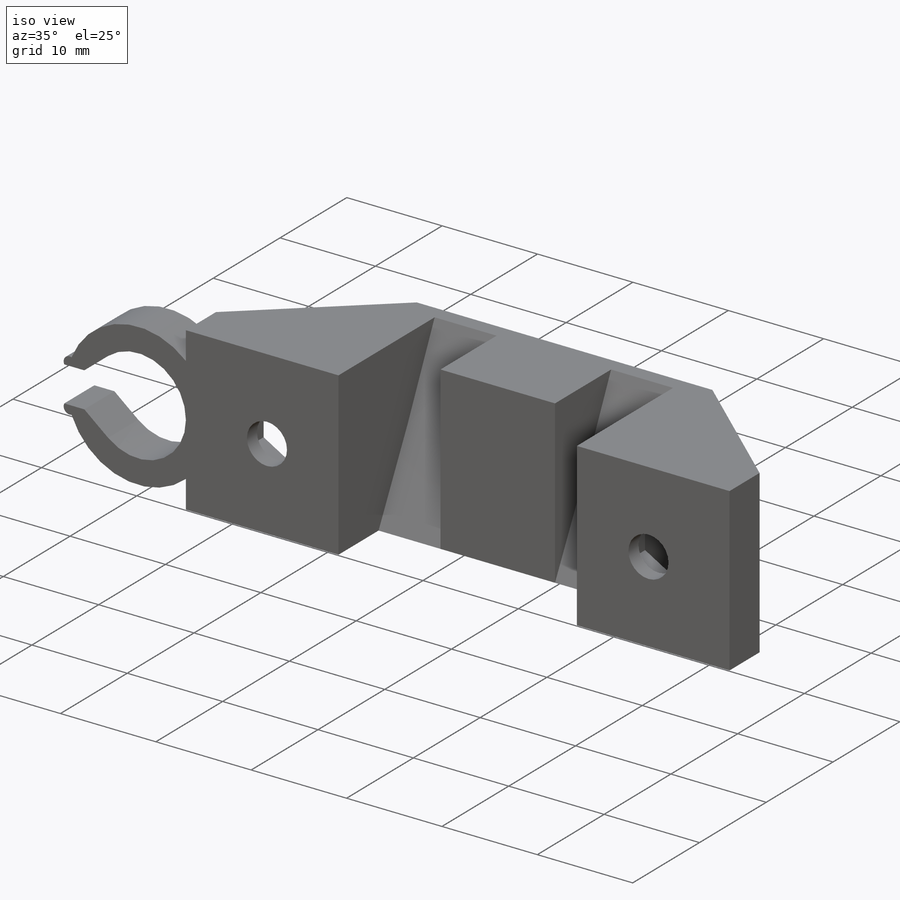
[diagram: iso view]
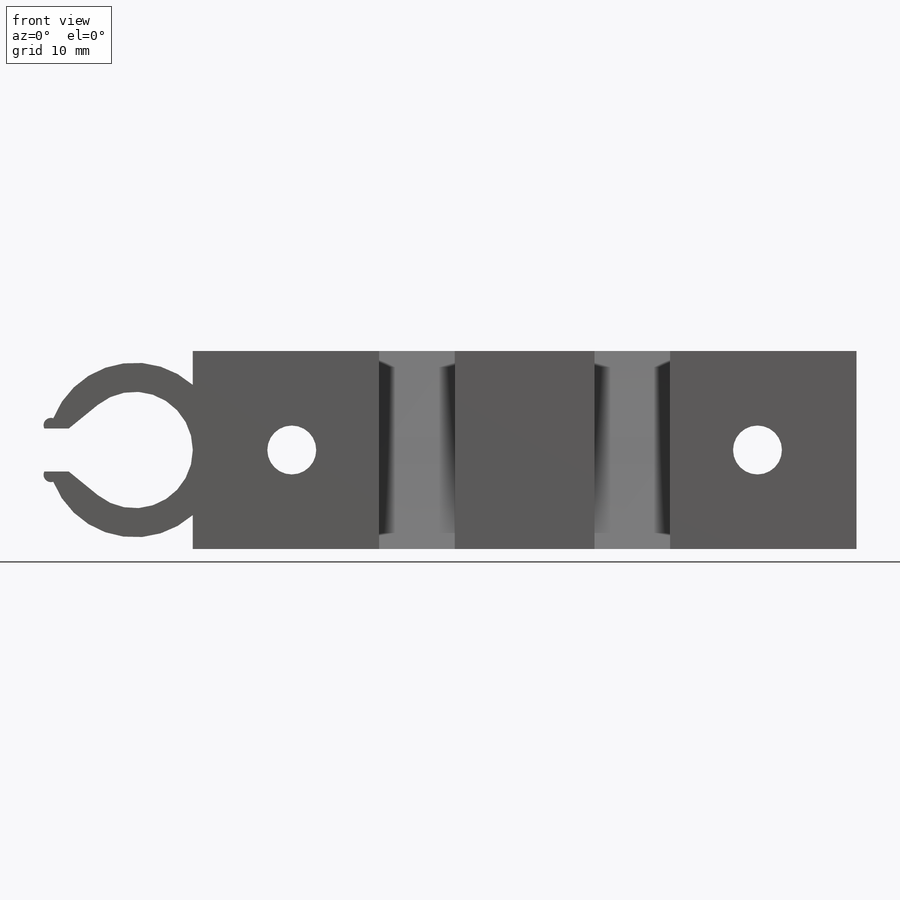
[diagram: front view]
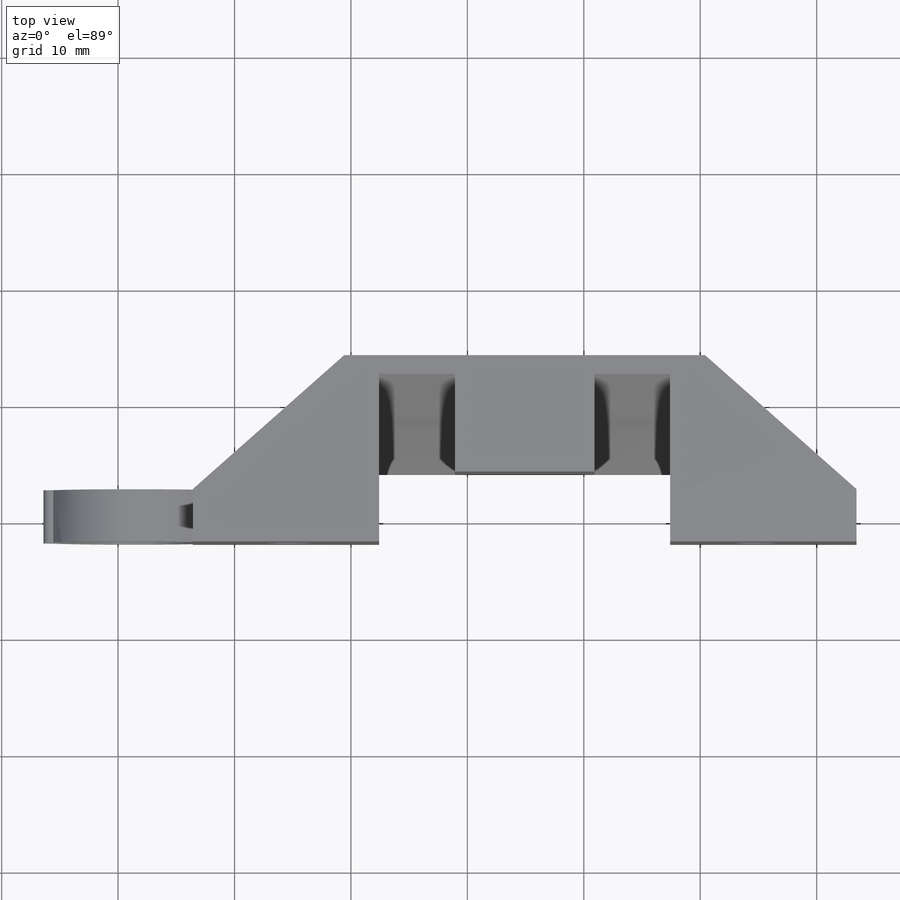
[diagram: top view]
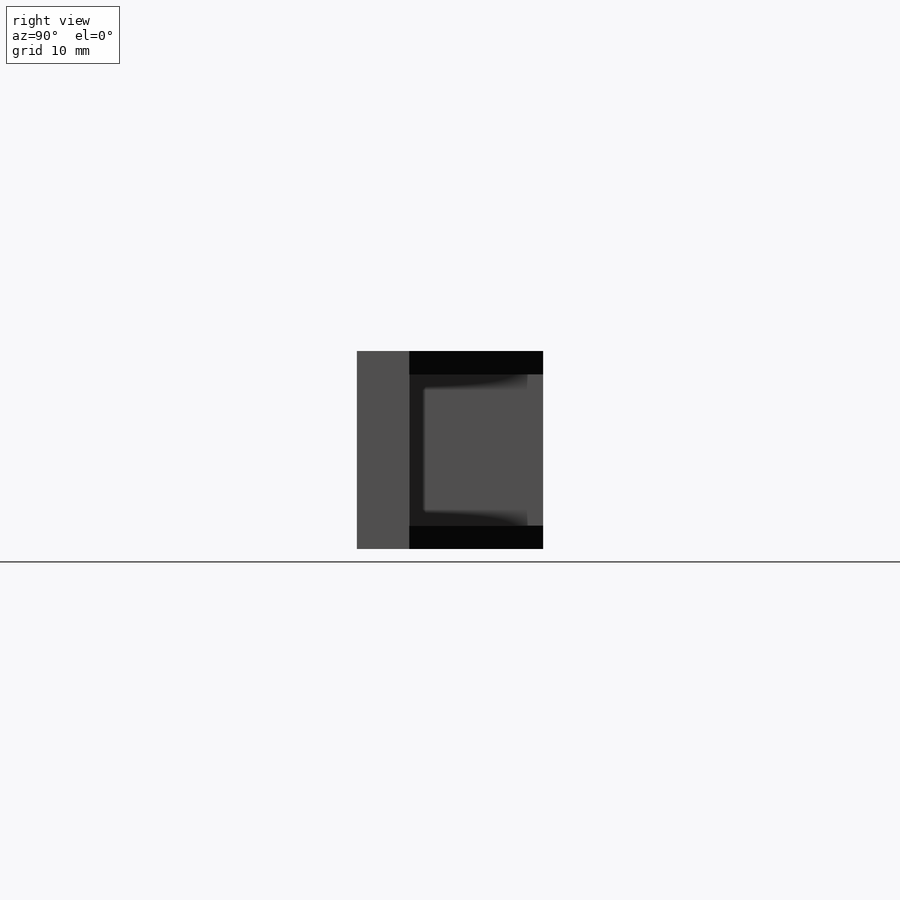
[diagram: right view]
SOLIDWORKS PART (.sldprt)
format: sldprt  version: not decoded by parser v0  size: 333,824 bytes
history: native  units: mm
features: sketch x8, extrude x4, cut_extrude x4, material x1 (+11 scaffold rows collapsed)
feature tree (28):
  scaffold x11  (default folders/planes/origin — collapsed)
  material  "Material <not specified>"
  sketch  "Sketch1"  dims[D1=10.0mm D2=25.0mm D3=31.0mm D4=3.0mm D5=11.5mm]
  extrude  "Boss-Extrude1"  Depth=17mm
  sketch  "Sketch2"
  extrude  "Boss-Extrude2"  Depth=2mm
  sketch  "Sketch3"
  extrude  "Boss-Extrude3"  Depth=2mm
  sketch  "Sketch4"  dims[D1=7.5mm D2=7.5mm D3=17.0mm]
  cut_extrude  "Cut-Extrude1"  Depth=100mm
  sketch  "Sketch5"  dims[D1=~168.141054deg]
  cut_extrude  "Cut-Extrude2"  Depth=3mm
  sketch  "Sketch7"  dims[D1=0.0mm]
  cut_extrude  "Cut-Extrude3"  Depth=6.5mm
  sketch  "Sketch8"
  cut_extrude  "Cut-Extrude4"  Depth=6.5mm
  sketch  "Sketch9"  dims[c1.D1=~14.049993mm c1.D3=8.0mm c2.D1=8.5mm c2.D2=5.0mm c2.D3=1.5mm c2.D4=1.5mm c3.D3=1.85mm c3.D4=1.85mm]
  extrude  "Boss-Extrude4"  Depth=4.5mm
decode coverage: 13 of 16 modeling features carry decoded parameters
note: ~ marks probable driven/reference dimensions
note: suppression state not decoded; provenance and decode notes live in map.json
